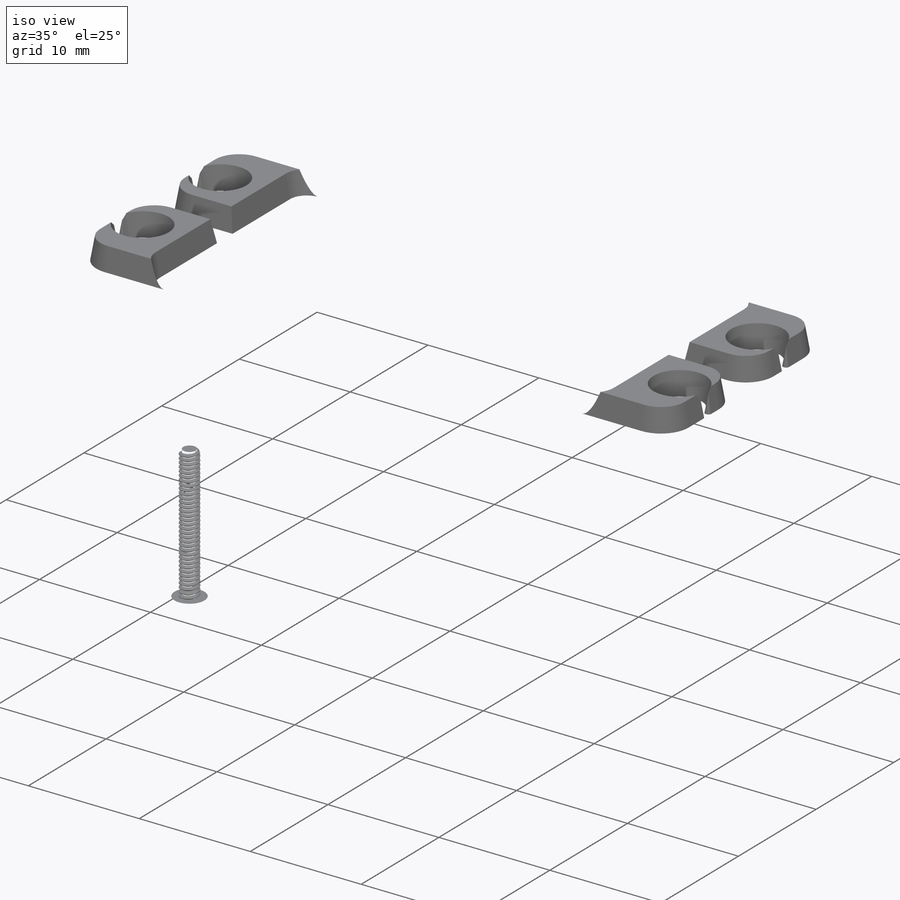
[diagram: iso view]
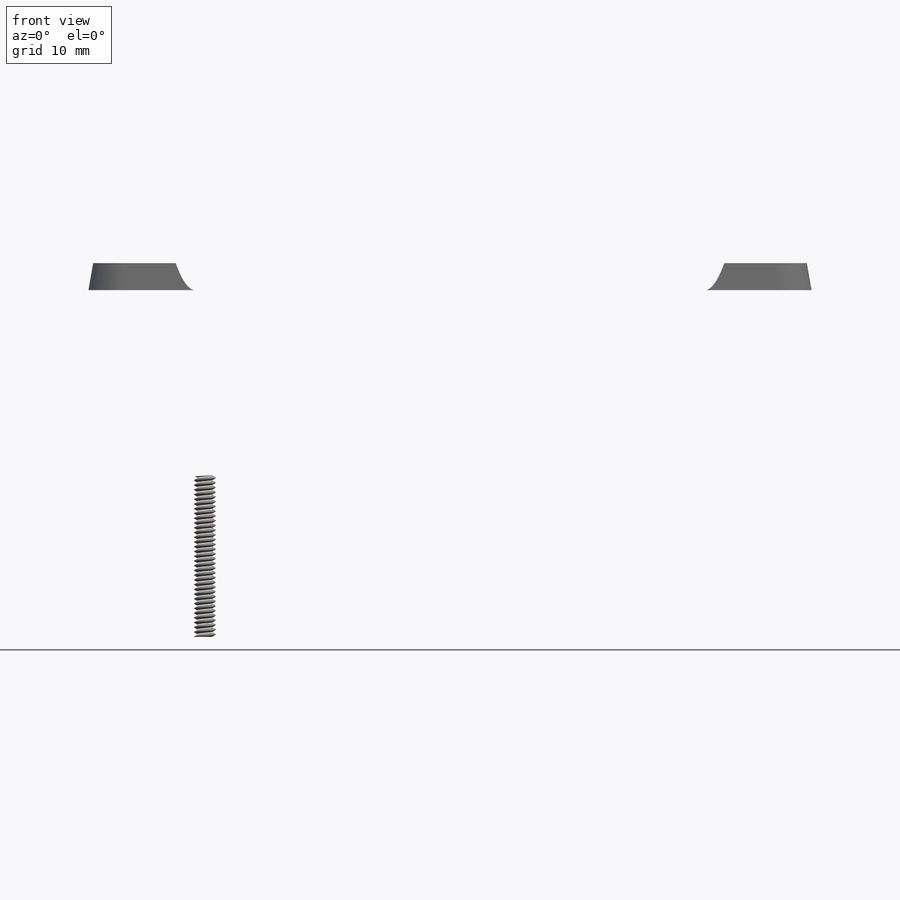
[diagram: front view]
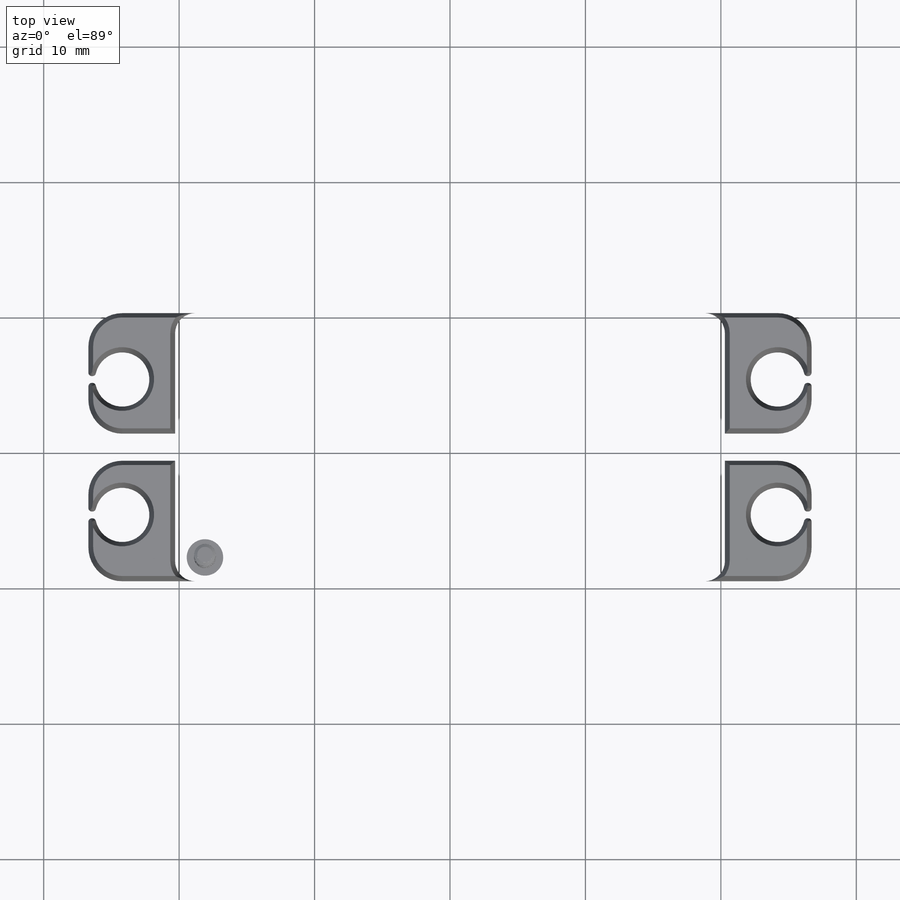
[diagram: top view]
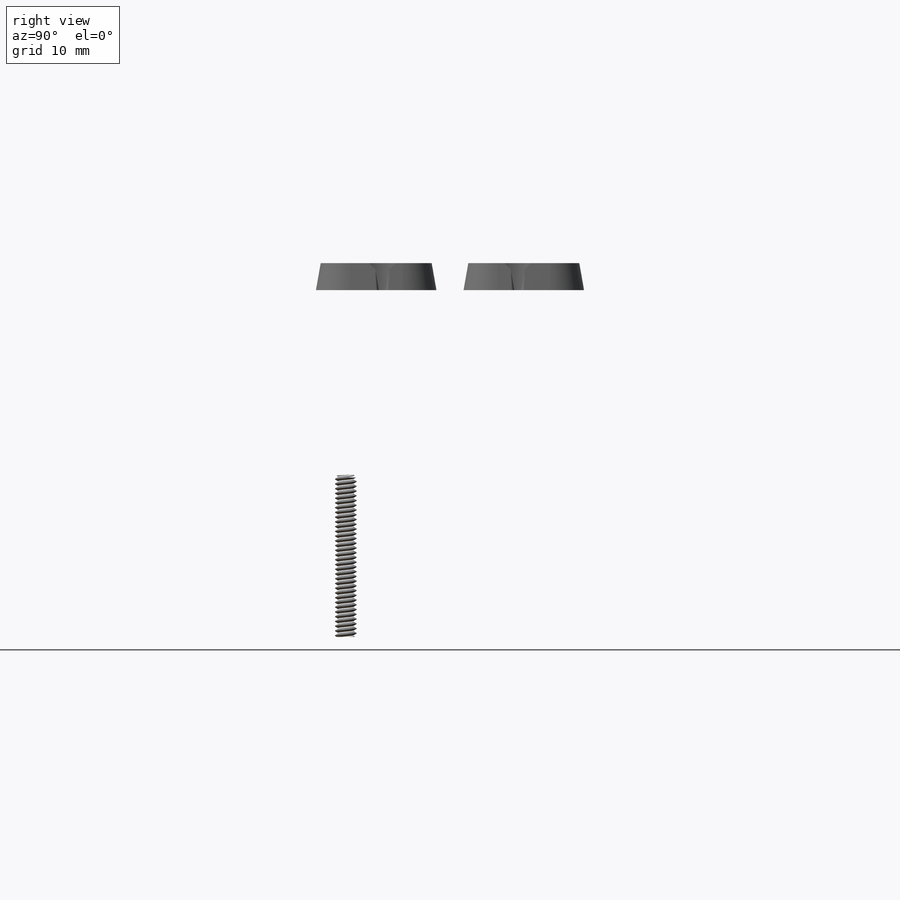
[diagram: right view]
SOLIDWORKS PART (.sldprt)
format: sldprt  version: not decoded by parser v0  size: 4,203,008 bytes
history: native  units: mm
features: sketch x19, cut_extrude x10, extrude x8, plane x6, fillet x4, move_body x4, mirror x2, chamfer x2, material x1 + 4 further entries (+28 scaffold rows collapsed; 16 parser-record rows omitted)
feature tree (104):
  scaffold x28  (default folders/planes/origin — collapsed)
  material  "Material <not specified>"
  plane  "Alzado"
  plane  "Planta"
  plane  "Vista lateral"
  sketch  "Sketch1"  dims[D1=40.6mm D2=19.8mm]
  extrude  "Boss-Extrude1"  Depth=36.35mm
  fillet  "Fillet1"  Radius=1.5mm
  fillet  "Fillet2"  Radius=1.5mm
  plane  "Plane1"  Offset=26.8mm
  sketch  "Sketch2"  dims[c1.D3=2.5mm c1.D4=2.5mm c1.D5=4.0mm c1.D7=0.25mm c1.D1=19.8mm c1.D2=47.0mm c1.D8=19.8mm c1.D9=~21.317833mm c1.D10=19.8mm c2.D8=~19.802536mm c2.D1=5.0mm c2.D4=1.0mm c2.D5=1.0mm c2.D6=0.5mm]
  extrude  "Boss-Extrude2"  Depth=2mm
  sketch  "Sketch3"
  plane  "Plane2"  Offset=6mm
  sketch  "Sketch4"  dims[D1=0.5mm]
  cut_extrude  "Cut-Extrude1"  Depth=0.25mm
  sketch  "Sketch5"  dims[c1.D1=2.5mm c1.D2=3.2mm c2.D1=2.5mm]
  cut_extrude  "Cut-Extrude5"  Depth=25mm
  "M1.6"
  parser-record x16  (decoder bookkeeping rows leaked as tree rows — omitted from the tree; the rows remain in map.json)
  move_body  "Body-Move/Copy8"
  mirror  "Mirror5"
  mirror  "Mirror6"
  "M1.65"
  move_body  "Body-Move/Copy10"
  "M1.66"
  move_body  "Body-Move/Copy12"
  "M1.67"
  move_body  "Body-Move/Copy14"
  sketch  "Sketch6"  dims[c1.D2=19.8mm c1.D1=9.0mm c2.D2=20.3mm c2.D1=9.0mm c3.D2=9.0mm c3.D1=10.3mm c4.D2=10.0mm c4.D3=5.5mm]
  cut_extrude  "Cut-Extrude10"  Depth=1.75mm
  fillet  "Fillet3"  Radius=0.25mm
  sketch  "Sketch10"  dims[D1=0.25mm D2=0.25mm]
  cut_extrude  "Cut-Extrude12"  Depth=0.25mm
  sketch  "Sketch11"  dims[D1=0.25mm]
  cut_extrude  "Cut-Extrude13"  Depth=0.25mm
  plane  "Plane3"  Offset=26.8mm
  sketch  "Sketch13"  dims[D1=0.5mm]
  cut_extrude  "Cut-Extrude14"  Depth=0.25mm
  sketch  "Sketch14"  dims[c1.D1=4.5mm c1.D2=4.5mm c2.D1=2.5mm c2.D2=9.0mm]
  extrude  "Boss-Extrude3"  Depth=1.75mm
  sketch  "Sketch15"  dims[D2=0.25mm D1=12.0mm D4=2.8mm D3=0.9mm]
  extrude  "Boss-Extrude4"  Depth=0.25mm
  sketch  "Sketch16"  dims[D1=1.5mm]
  extrude  "Boss-Extrude5"  Depth=0.5mm
  sketch  "Sketch17"  dims[D1=5.0mm]
  extrude  "Boss-Extrude6"  Depth=1mm
  sketch  "Sketch18"  dims[D1=11.0mm]
  extrude  "Boss-Extrude7"  Depth=1mm
  fillet  "Fillet4"  Radius=0.25mm
  sketch  "Sketch19"  dims[D1=6.0mm]
  cut_extrude  "Cut-Extrude15"  Depth=10mm
  sketch  "Sketch20"
  extrude  "Boss-Extrude8"  Depth=14mm
  sketch  "Sketch21"  dims[D1=0.5mm]
  cut_extrude  "Cut-Extrude16"  Depth=0.75mm
  sketch  "Sketch22"  dims[D1=2.5mm]
  cut_extrude  "Cut-Extrude17"  Depth=8.5mm
  sketch  "Sketch23"  dims[D1=1.0mm D2=1.7mm]
  cut_extrude  "Cut-Extrude18"  Depth=8.5mm
  chamfer  "Chamfer1"  Distance=0.5mm Angle=35deg
  chamfer  "Chamfer2"  Distance=0.25mm Angle=45deg
decode coverage: 41 of 49 modeling features carry decoded parameters; 4 rows unclassified (native names shown)
note: ~ marks probable driven/reference dimensions
note: suppression state not decoded; provenance and decode notes live in map.json
